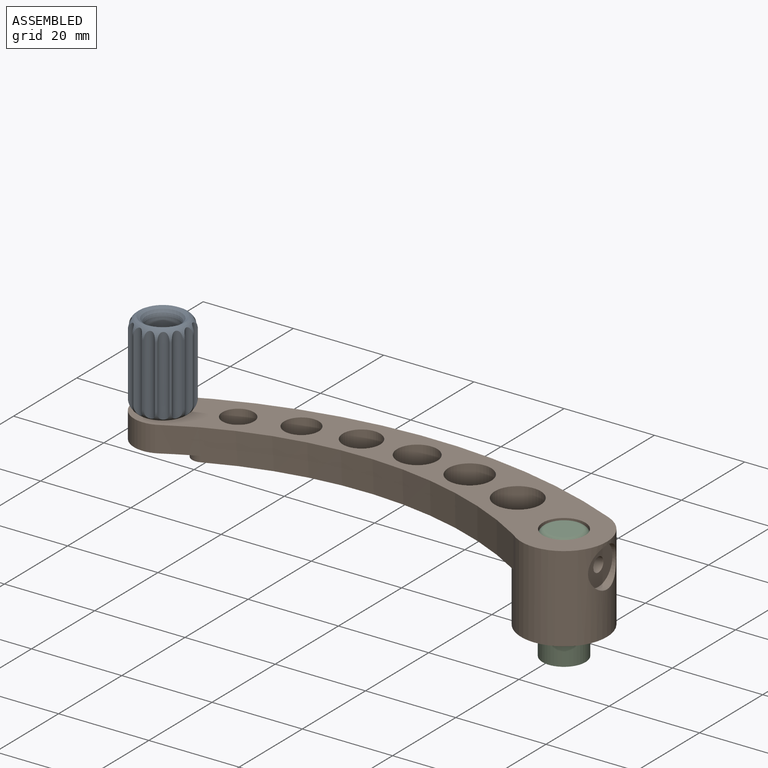
[diagram: assembled view]
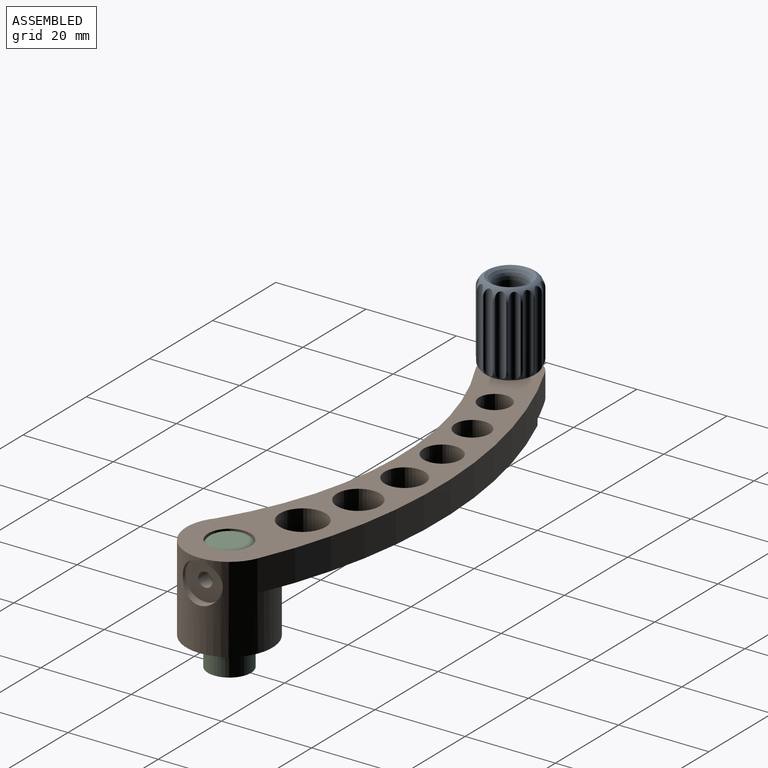
[diagram: assembled view, second angle]
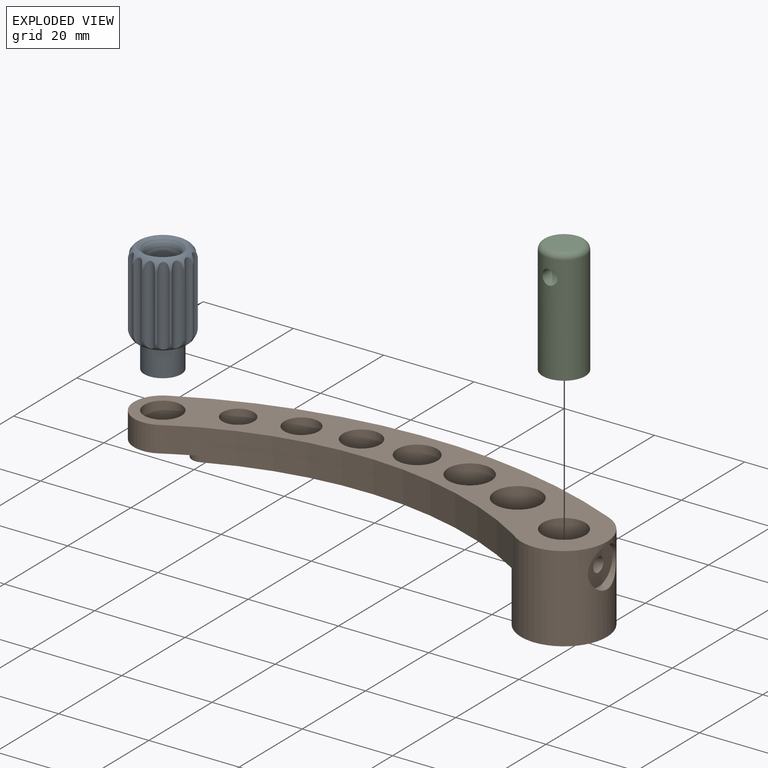
[diagram: exploded view]
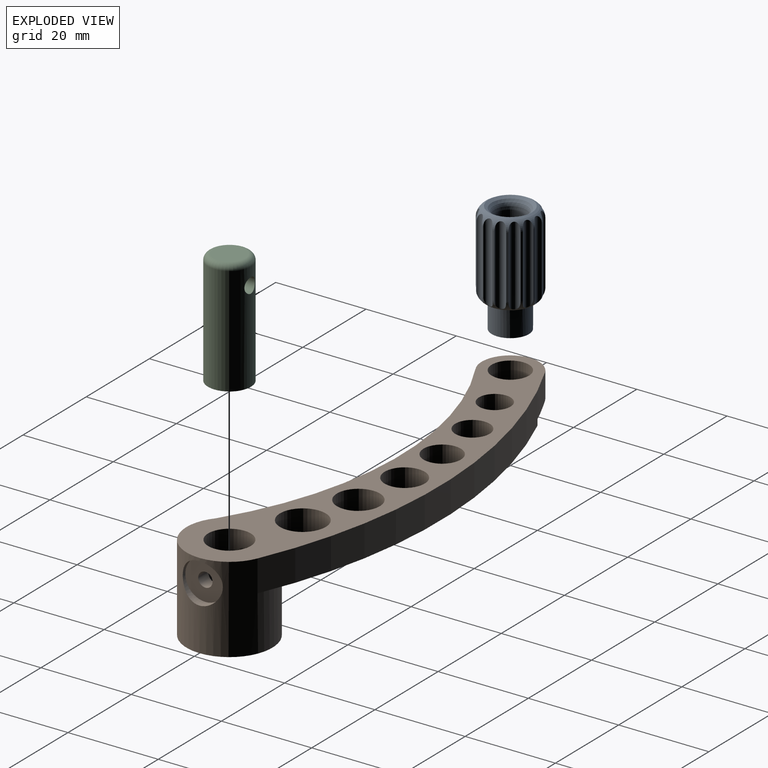
[diagram: exploded view, second angle]
ASSEMBLY  parts=3 mates=2
PART A: 40 faces, bbox 13.7x13.7x24.8 mm
  f0: cylinder r=6.35mm len=13.99mm, axis (0,0,-1), area 6.3mm2, adj f17,f18,f32,f33
  f1: cylinder r=6.35mm len=13.99mm, axis (0,0,-1), area 6.3mm2, adj f17,f18,f30,f32
  f2: cylinder r=6.35mm len=13.99mm, axis (0,0,-1), area 6.3mm2, adj f17,f18,f19,f31
  f3: cylinder r=6.35mm len=13.99mm, axis (0,0,-1), area 6.3mm2, adj f17,f18,f30,f31
  f4: cylinder r=6.35mm len=13.99mm, axis (0,0,-1), area 6.3mm2, adj f17,f18,f28,f29
  f5: cylinder r=6.35mm len=13.99mm, axis (0,0,-1), area 6.3mm2, adj f17,f18,f28,f33
  f6: cylinder r=6.35mm len=13.99mm, axis (0,0,-1), area 6.3mm2, adj f17,f18,f27,f29
  f7: cylinder r=6.35mm len=13.99mm, axis (0,0,-1), area 6.3mm2, adj f17,f18,f26,f27
  f8: cylinder r=6.35mm len=13.99mm, axis (0,0,-1), area 6.3mm2, adj f17,f18,f23,f25
  f9: cylinder r=6.35mm len=13.99mm, axis (0,0,-1), area 6.3mm2, adj f17,f18,f24,f25
  f10: cylinder r=6.35mm len=13.99mm, axis (0,0,-1), area 6.3mm2, adj f17,f18,f22,f23
  f11: cylinder r=6.35mm len=13.99mm, axis (0,0,-1), area 6.3mm2, adj f17,f18,f20,f22
  f12: cylinder r=6.35mm len=13.99mm, axis (0,0,-1), area 6.3mm2, adj f17,f18,f21,f26
  f13: cylinder r=6.35mm len=13.99mm, axis (0,0,-1), area 6.3mm2, adj f17,f18,f20,f21
  f14: cylinder r=4.13mm len=8.26mm, axis (0,0,-1), area 148.2mm2, adj f15,f17
  f15: plane 8.26x8.26mm, normal (0,0,-1), area 48.5mm2, adj f14,f34
  f16: cylinder r=6.35mm len=13.99mm, axis (0,0,-1), area 6.3mm2, adj f17,f18,f19,f24
  f17: torus R=3.81mm, axis (0,0,-1), area 75.5mm2, adj f0,f1,f2,f3,f4,f5,f6,f7
  f18: torus R=3.81mm, axis (0,0,1), area 56mm2, adj f0,f1,f2,f3,f4,f5,f6,f7
  f19: cylinder r=1.27mm len=17.55mm, axis (0,0,1), area 44.5mm2, adj f2,f16,f17,f18
  f20: cylinder r=1.27mm len=17.55mm, axis (0,0,1), area 44.5mm2, adj f11,f13,f17,f18
  f21: cylinder r=1.27mm len=17.55mm, axis (0,0,1), area 44.5mm2, adj f12,f13,f17,f18
  f22: cylinder r=1.27mm len=17.55mm, axis (0,0,1), area 44.5mm2, adj f10,f11,f17,f18
  f23: cylinder r=1.27mm len=17.55mm, axis (0,0,1), area 44.5mm2, adj f8,f10,f17,f18
  f24: cylinder r=1.27mm len=17.55mm, axis (0,0,1), area 44.5mm2, adj f9,f16,f17,f18
  f25: cylinder r=1.27mm len=17.55mm, axis (0,0,1), area 44.5mm2, adj f8,f9,f17,f18
  f26: cylinder r=1.27mm len=17.55mm, axis (0,0,1), area 44.5mm2, adj f7,f12,f17,f18
  f27: cylinder r=1.27mm len=17.55mm, axis (0,0,1), area 44.5mm2, adj f6,f7,f17,f18
  f28: cylinder r=1.27mm len=17.55mm, axis (0,0,1), area 44.5mm2, adj f4,f5,f17,f18
  f29: cylinder r=1.27mm len=17.55mm, axis (0,0,1), area 44.5mm2, adj f4,f6,f17,f18
  f30: cylinder r=1.27mm len=17.55mm, axis (0,0,1), area 44.5mm2, adj f1,f3,f17,f18
  f31: cylinder r=1.27mm len=17.55mm, axis (0,0,1), area 44.5mm2, adj f2,f3,f17,f18
  f32: cylinder r=1.27mm len=17.55mm, axis (0,0,1), area 44.5mm2, adj f0,f1,f17,f18
  f33: cylinder r=1.27mm len=17.55mm, axis (0,0,1), area 44.5mm2, adj f0,f5,f17,f18
  f34: cylinder r=1.27mm len=8.89mm, axis (0,0,-1), area 70.9mm2, adj f15,f35
  f35: plane 2.54x2.54mm, normal (0,0,-1), area 5.1mm2, adj f34
  f36: cylinder r=3.49mm len=6.99mm, axis (0,0,1), area 128.2mm2, adj f38,f39
  f37: plane 3.43x3.43mm, normal (0,0,1), area 9.2mm2, adj f39
  f38: bspline ~12.38x12.38mm, area 70.2mm2, adj f18,f36
  f39: torus R=1.71mm, axis (0,0,1), area 49.9mm2, adj f36,f37
PART B: 24 faces, bbox 104.8x27.6x19.1 mm
  f0: cylinder r=1.59mm len=3.18mm, axis (1,0,0), area 30.2mm2, adj f2,f21
  f1: cylinder r=4.13mm len=8.26mm, axis (0,0,1), area 148.2mm2, adj f4,f19
  f2: cylinder r=4.72mm len=19.08mm, axis (0,0,-1), area 550.2mm2, adj f0,f4,f5,f17
  f3: cylinder r=9.53mm len=19.08mm, axis (0,0,-1), area 889.2mm2, adj f4,f5,f7,f13,f15,f20
  f4: plane 104.78x27.59mm, normal (0,0,1), area 1050.7mm2, adj f1,f2,f3,f6,f7,f8,f9,f10
  f5: plane 19.05x19.05mm, normal (0,0,-1), area 214.9mm2, adj f2,f3
  f6: cylinder r=4.45mm len=8.89mm, axis (0,0,1), area 195.1mm2, adj f4,f15
  f7: cylinder r=111.1mm len=95.42mm, axis (0,0,1), area 678.8mm2, adj f3,f4,f14,f15,f19,f23
  f8: cylinder r=4.76mm len=9.53mm, axis (0,0,1), area 209mm2, adj f4,f15
  f9: cylinder r=5.08mm len=10.16mm, axis (0,0,1), area 223mm2, adj f4,f15
  f10: cylinder r=3.49mm len=6.99mm, axis (0,0,1), area 153.3mm2, adj f4,f15
  f11: cylinder r=3.81mm len=7.62mm, axis (0,0,1), area 167.2mm2, adj f4,f15
  f12: cylinder r=4.13mm len=8.26mm, axis (0,0,1), area 181.1mm2, adj f4,f15
  f13: cylinder r=77.49mm len=79.48mm, axis (0,0,1), area 573.6mm2, adj f3,f4,f14,f15,f19,f22
  f14: cylinder r=6.35mm len=12.03mm, axis (0,0,1), area 116.6mm2, adj f4,f7,f13,f19
  f15: plane 89.47x25.32mm, normal (0,0,-1), area 749.8mm2, adj f3,f6,f7,f8,f9,f10,f11,f12
  f16: plane 3.18x3.18mm, normal (1,0,0), area 7.9mm2, adj f17
  f17: cylinder r=1.59mm len=3.18mm, axis (1,0,0), area 17.6mm2, adj f2,f16
  f18: cylinder r=6.35mm len=4.74mm, axis (0,0,-1), area 6.9mm2, adj f15,f19,f22,f23
  f19: plane 16.27x15.55mm, normal (0,0,-1), area 86mm2, adj f1,f7,f13,f14,f18,f22,f23
  f20: cylinder r=4.45mm len=8.89mm, axis (1,0,0), area 38mm2, adj f3,f21
  f21: plane 8.89x8.89mm, normal (1,0,0), area 54.2mm2, adj f0,f20
  f22: cylinder r=2.54mm len=3.57mm, axis (0,0,1), area 6.3mm2, adj f13,f15,f18,f19
  f23: cylinder r=2.54mm len=4.3mm, axis (0,0,-1), area 6.6mm2, adj f7,f15,f18,f19
PART C: 5 faces, bbox 10.3x10.3x25.4 mm
  f0: cylinder r=4.76mm len=24.13mm, axis (0,0,1), area 704.7mm2, adj f1,f3,f4
  f1: plane 9.53x9.53mm, normal (0,0,-1), area 71.3mm2, adj f0
  f2: plane 6.99x6.99mm, normal (0,0,1), area 38.3mm2, adj f4
  f3: cylinder r=1.65mm len=9.53mm, axis (0,-1,0), area 95.8mm2, adj f0
  f4: torus R=3.49mm, axis (0,0,1), area 53.9mm2, adj f0,f2
PLACE A t=(-65.85,-10.09,14.6)mm
PLACE B t=(23.05,-10.09,1.24)mm
PLACE C t=(23.05,-10.09,20.32)mm
MATE fastened B.f2 <-> C.f0  axis (0,0,1) through (23.05,-10.09,20.32)mm
MATE fastened A.f14 <-> B.f1  axis (0,0,1) through (-65.85,-10.09,20.32)mm
